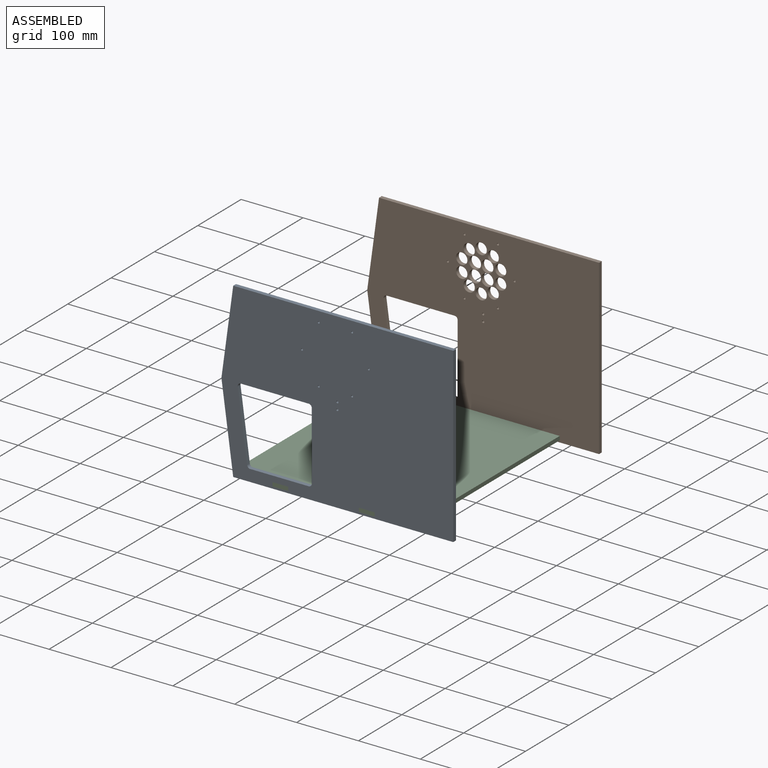
[diagram: assembled view]
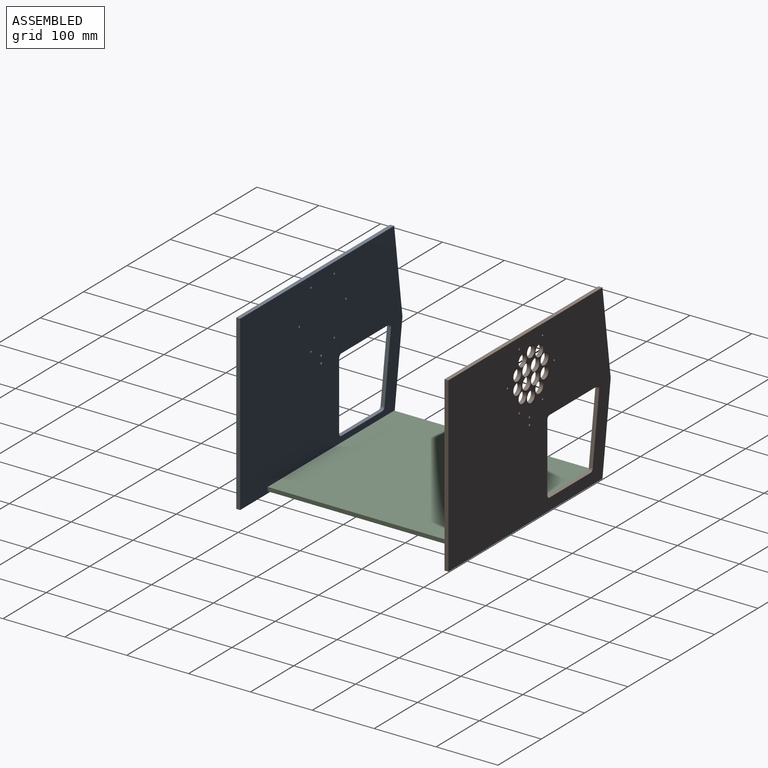
[diagram: assembled view, second angle]
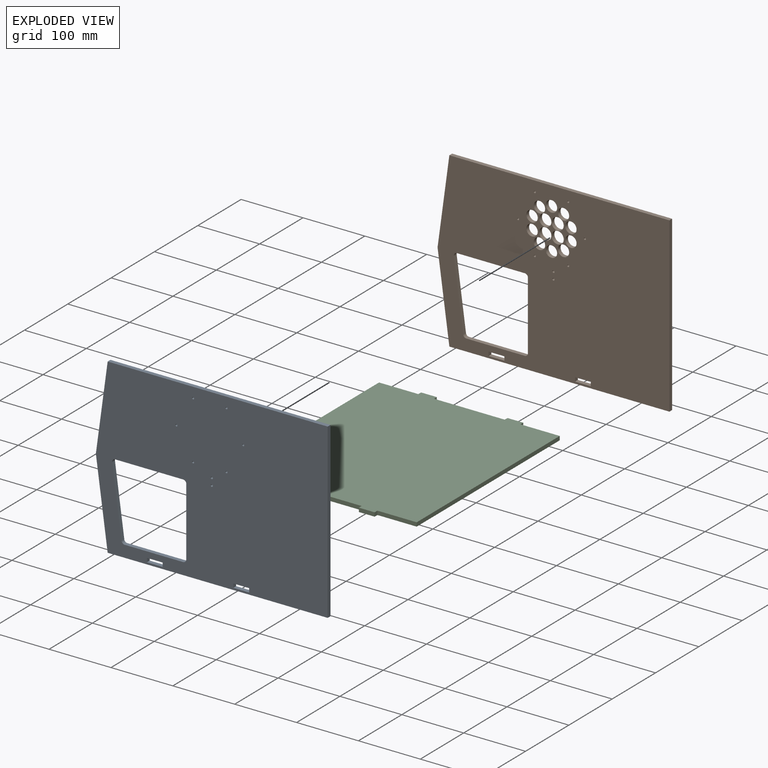
[diagram: exploded view]
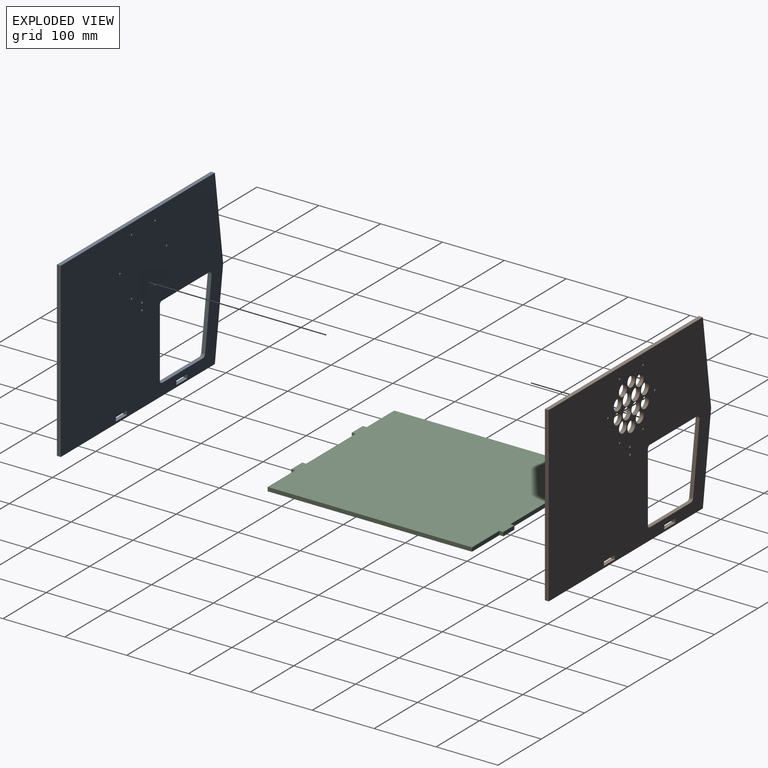
[diagram: exploded view, second angle]
ASSEMBLY  parts=3 mates=2
PART A: 31 faces, bbox 374.7x6.4x279.4 mm
  f0: plane 374.65x279.4mm, normal (0,-1,0), area 88112.3mm2, adj f2,f3,f4,f5,f6,f7,f8,f9
  f1: plane 374.65x279.4mm, normal (0,1,0), area 88112.3mm2, adj f2,f3,f4,f5,f6,f7,f8,f9
  f2: plane 279.4x6.35mm, normal (1,0,0), area 1774.2mm2, adj f0,f1,f3,f6
  f3: plane 355.6x6.35mm, normal (0,0,1), area 2258.1mm2, adj f0,f1,f2,f4
  f4: plane 139.7x19.05mm, normal (-0.99,0,0.14), area 895.3mm2, adj f0,f1,f3,f5
  f5: plane 139.7x19.05mm, normal (-0.99,0,-0.14), area 895.3mm2, adj f0,f1,f4,f6
  f6: plane 355.6x6.35mm, normal (0,0,-1), area 2258.1mm2, adj f0,f1,f2,f5
  f7: cylinder r=1.6mm len=6.35mm, axis (0,1,0), area 63.8mm2, adj f0,f1
  f8: cylinder r=1.6mm len=6.35mm, axis (0,1,0), area 63.8mm2, adj f0,f1
  f9: cylinder r=1.6mm len=6.35mm, axis (0,1,0), area 63.8mm2, adj f0,f1
  f10: cylinder r=1.6mm len=6.35mm, axis (0,1,0), area 63.8mm2, adj f0,f1
  f11: cylinder r=1.6mm len=6.35mm, axis (0,1,0), area 63.8mm2, adj f0,f1
  f12: cylinder r=1.6mm len=6.35mm, axis (0,1,0), area 63.8mm2, adj f0,f1
  f13: cylinder r=1.78mm len=6.35mm, axis (0,-1,0), area 70.9mm2, adj f0,f1
  f14: cylinder r=1.78mm len=6.35mm, axis (0,-1,0), area 70.9mm2, adj f0,f1
  f15: plane 6.35x6.35mm, normal (-1,0,0), area 40.3mm2, adj f0,f1,f16,f18
  f16: plane 25.4x6.35mm, normal (0,0,-1), area 161.3mm2, adj f0,f1,f15,f17
  f17: plane 6.35x6.35mm, normal (1,0,0), area 40.3mm2, adj f0,f1,f16,f18
  f18: plane 25.4x6.35mm, normal (0,0,1), area 161.3mm2, adj f0,f1,f15,f17
  f19: plane 6.35x6.35mm, normal (1,0,0), area 40.3mm2, adj f0,f1,f20,f22
  f20: plane 25.4x6.35mm, normal (0,0,1), area 161.3mm2, adj f0,f1,f19,f21
  f21: plane 6.35x6.35mm, normal (-1,0,0), area 40.3mm2, adj f0,f1,f20,f22
  f22: plane 25.4x6.35mm, normal (0,0,-1), area 161.3mm2, adj f0,f1,f19,f21
  f23: plane 110.49x15.07mm, normal (0.99,0,0.14), area 708.1mm2, adj f0,f1,f27,f30
  f24: plane 94.45x6.35mm, normal (0,0,1), area 599.7mm2, adj f0,f1,f27,f28
  f25: plane 110.49x6.35mm, normal (-1,0,0), area 701.6mm2, adj f0,f1,f28,f29
  f26: plane 109.52x6.35mm, normal (0,0,-1), area 695.4mm2, adj f0,f1,f29,f30
  f27: cylinder r=5.08mm len=6.35mm, axis (0,1,0), area 46.3mm2, adj f0,f1,f23,f24
  f28: cylinder r=5.08mm len=6.35mm, axis (0,1,0), area 50.7mm2, adj f0,f1,f24,f25
  f29: cylinder r=5.08mm len=6.35mm, axis (0,-1,0), area 50.7mm2, adj f0,f1,f25,f26
  f30: cylinder r=5.08mm len=6.35mm, axis (0,-1,0), area 55mm2, adj f0,f1,f23,f26
PART B: 45 faces, bbox 374.7x6.4x279.4 mm
  f0: plane 374.65x279.4mm, normal (0,-1,0), area 84283.8mm2, adj f2,f3,f4,f5,f6,f7,f8,f9
  f1: plane 374.65x279.4mm, normal (0,1,0), area 84283.8mm2, adj f2,f3,f4,f5,f6,f7,f8,f9
  f2: plane 279.4x6.35mm, normal (1,0,0), area 1774.2mm2, adj f0,f1,f3,f6
  f3: plane 355.6x6.35mm, normal (0,0,1), area 2258.1mm2, adj f0,f1,f2,f4
  f4: plane 139.7x19.05mm, normal (-0.99,0,0.14), area 895.3mm2, adj f0,f1,f3,f5
  f5: plane 139.7x19.05mm, normal (-0.99,0,-0.14), area 895.3mm2, adj f0,f1,f4,f6
  f6: plane 355.6x6.35mm, normal (0,0,-1), area 2258.1mm2, adj f0,f1,f2,f5
  f7: cylinder r=9.14mm len=18.29mm, axis (0,1,0), area 364.8mm2, adj f0,f1
  f8: cylinder r=9.14mm len=18.29mm, axis (0,1,0), area 364.8mm2, adj f0,f1
  f9: cylinder r=9.14mm len=18.29mm, axis (0,1,0), area 364.8mm2, adj f0,f1
  f10: cylinder r=9.14mm len=18.29mm, axis (0,1,0), area 364.8mm2, adj f0,f1
  f11: cylinder r=9.14mm len=18.29mm, axis (0,1,0), area 364.8mm2, adj f0,f1
  f12: cylinder r=9.78mm len=19.56mm, axis (0,1,0), area 390.2mm2, adj f0,f1
  f13: cylinder r=9.14mm len=18.29mm, axis (0,1,0), area 364.8mm2, adj f0,f1
  f14: cylinder r=9.14mm len=18.29mm, axis (0,1,0), area 364.8mm2, adj f0,f1
  f15: cylinder r=1.6mm len=6.35mm, axis (0,1,0), area 63.8mm2, adj f0,f1
  f16: cylinder r=1.6mm len=6.35mm, axis (0,1,0), area 63.8mm2, adj f0,f1
  f17: cylinder r=1.6mm len=6.35mm, axis (0,1,0), area 63.8mm2, adj f0,f1
  f18: cylinder r=1.6mm len=6.35mm, axis (0,1,0), area 63.8mm2, adj f0,f1
  f19: cylinder r=9.14mm len=18.29mm, axis (0,1,0), area 364.8mm2, adj f0,f1
  f20: cylinder r=9.14mm len=18.29mm, axis (0,1,0), area 364.8mm2, adj f0,f1
  f21: cylinder r=9.14mm len=18.29mm, axis (0,1,0), area 364.8mm2, adj f0,f1
  f22: cylinder r=1.6mm len=6.35mm, axis (0,1,0), area 63.8mm2, adj f0,f1
  f23: cylinder r=9.78mm len=19.56mm, axis (0,1,0), area 390.2mm2, adj f0,f1
  f24: cylinder r=9.78mm len=19.56mm, axis (0,1,0), area 390.2mm2, adj f0,f1
  f25: cylinder r=9.78mm len=19.56mm, axis (0,1,0), area 390.2mm2, adj f0,f1
  f26: cylinder r=1.6mm len=6.35mm, axis (0,1,0), area 63.8mm2, adj f0,f1
  f27: cylinder r=1.78mm len=6.35mm, axis (0,-1,0), area 70.9mm2, adj f0,f1
  f28: cylinder r=1.78mm len=6.35mm, axis (0,-1,0), area 70.9mm2, adj f0,f1
  f29: plane 6.35x6.35mm, normal (-1,0,0), area 40.3mm2, adj f0,f1,f30,f32
  f30: plane 25.4x6.35mm, normal (0,0,-1), area 161.3mm2, adj f0,f1,f29,f31
  f31: plane 6.35x6.35mm, normal (1,0,0), area 40.3mm2, adj f0,f1,f30,f32
  f32: plane 25.4x6.35mm, normal (0,0,1), area 161.3mm2, adj f0,f1,f29,f31
  f33: plane 6.35x6.35mm, normal (1,0,0), area 40.3mm2, adj f0,f1,f34,f36
  f34: plane 25.4x6.35mm, normal (0,0,1), area 161.3mm2, adj f0,f1,f33,f35
  f35: plane 6.35x6.35mm, normal (-1,0,0), area 40.3mm2, adj f0,f1,f34,f36
  f36: plane 25.4x6.35mm, normal (0,0,-1), area 161.3mm2, adj f0,f1,f33,f35
  f37: plane 110.49x15.07mm, normal (0.99,0,0.14), area 708.1mm2, adj f0,f1,f41,f44
  f38: plane 94.45x6.35mm, normal (0,0,1), area 599.7mm2, adj f0,f1,f41,f42
  f39: plane 110.49x6.35mm, normal (-1,0,0), area 701.6mm2, adj f0,f1,f42,f43
  f40: plane 109.52x6.35mm, normal (0,0,-1), area 695.4mm2, adj f0,f1,f43,f44
  f41: cylinder r=5.08mm len=6.35mm, axis (0,1,0), area 46.3mm2, adj f0,f1,f37,f38
  f42: cylinder r=5.08mm len=6.35mm, axis (0,1,0), area 50.7mm2, adj f0,f1,f38,f39
  f43: cylinder r=5.08mm len=6.35mm, axis (0,-1,0), area 50.7mm2, adj f0,f1,f39,f40
  f44: cylinder r=5.08mm len=6.35mm, axis (0,-1,0), area 55mm2, adj f0,f1,f37,f40
PART C: 22 faces, bbox 342.9x292.1x6.4 mm
  f0: plane 6.35x6.35mm, normal (0,1,0), area 40.3mm2, adj f1,f19,f20,f21
  f1: plane 63.5x6.35mm, normal (1,0,0), area 403.2mm2, adj f0,f2,f20,f21
  f2: plane 330.2x6.35mm, normal (0,1,0), area 2096.8mm2, adj f1,f3,f20,f21
  f3: plane 63.5x6.35mm, normal (-1,0,0), area 403.2mm2, adj f2,f4,f20,f21
  f4: plane 6.35x6.35mm, normal (0,1,0), area 40.3mm2, adj f3,f5,f20,f21
  f5: plane 25.4x6.35mm, normal (-1,0,0), area 161.3mm2, adj f4,f6,f20,f21
  f6: plane 6.35x6.35mm, normal (0,-1,0), area 40.3mm2, adj f5,f7,f20,f21
  f7: plane 114.28x6.35mm, normal (-1,0,0), area 725.7mm2, adj f6,f8,f20,f21
  f8: plane 6.35x6.35mm, normal (0,1,0), area 40.3mm2, adj f7,f9,f20,f21
  f9: plane 25.4x6.35mm, normal (-1,0,0), area 161.3mm2, adj f8,f10,f20,f21
  f10: plane 6.35x6.35mm, normal (0,-1,0), area 40.3mm2, adj f9,f11,f20,f21
  f11: plane 63.5x6.35mm, normal (-1,0,0), area 403.2mm2, adj f10,f12,f20,f21
  f12: plane 330.2x6.35mm, normal (0,-1,0), area 2096.8mm2, adj f11,f13,f20,f21
  f13: plane 63.5x6.35mm, normal (1,0,0), area 403.2mm2, adj f12,f14,f20,f21
  f14: plane 6.35x6.35mm, normal (0,-1,0), area 40.3mm2, adj f13,f15,f20,f21
  f15: plane 25.4x6.35mm, normal (1,0,0), area 161.3mm2, adj f14,f16,f20,f21
  f16: plane 6.35x6.35mm, normal (0,1,0), area 40.3mm2, adj f15,f17,f20,f21
  f17: plane 114.28x6.35mm, normal (1,0,0), area 725.7mm2, adj f16,f18,f20,f21
  f18: plane 6.35x6.35mm, normal (0,-1,0), area 40.3mm2, adj f17,f19,f20,f21
  f19: plane 25.4x6.35mm, normal (1,0,0), area 161.3mm2, adj f0,f18,f20,f21
  f20: plane 342.9x292.08mm, normal (0,0,1), area 97090.7mm2, adj f0,f1,f2,f3,f4,f5,f6,f7
  f21: plane 342.9x292.08mm, normal (0,0,-1), area 97090.7mm2, adj f0,f1,f2,f3,f4,f5,f6,f7
PLACE A t=(266.07,-127.18,-285.85)mm
PLACE B rot(axis=(0,0,-1),0deg) t=(266.07,209.37,-285.85)mm
PLACE C rot(axis=(0,0,-1),90deg) t=(162.04,32.96,-396.29)mm
MATE fastened C.f9 <-> B.f1  axis (0,1,0) through (177.17,209.37,-396.29)mm
MATE fastened C.f15 <-> A.f0  axis (0,-1,0) through (177.17,-133.53,-396.29)mm
